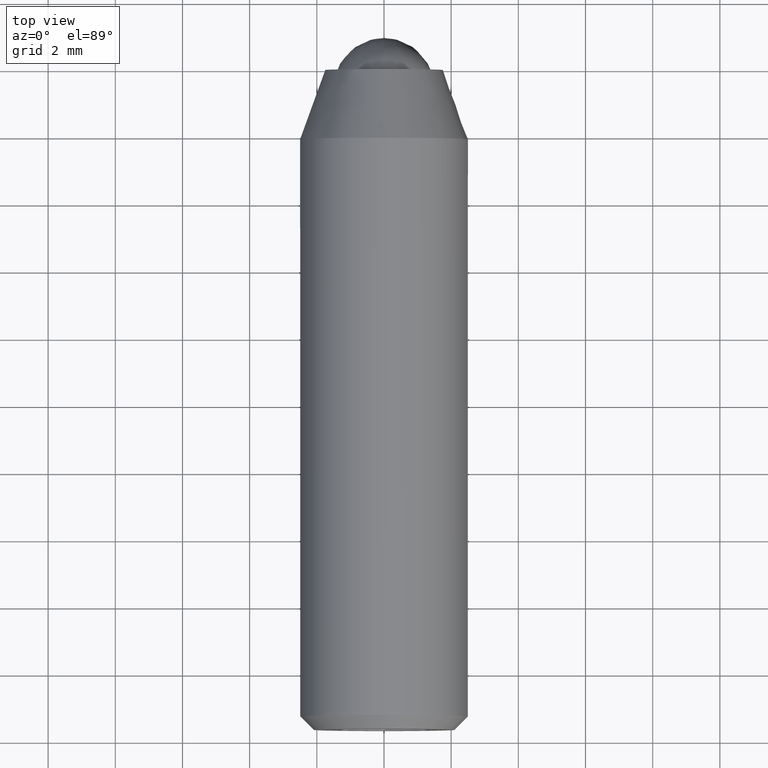
[diagram: clean part render]
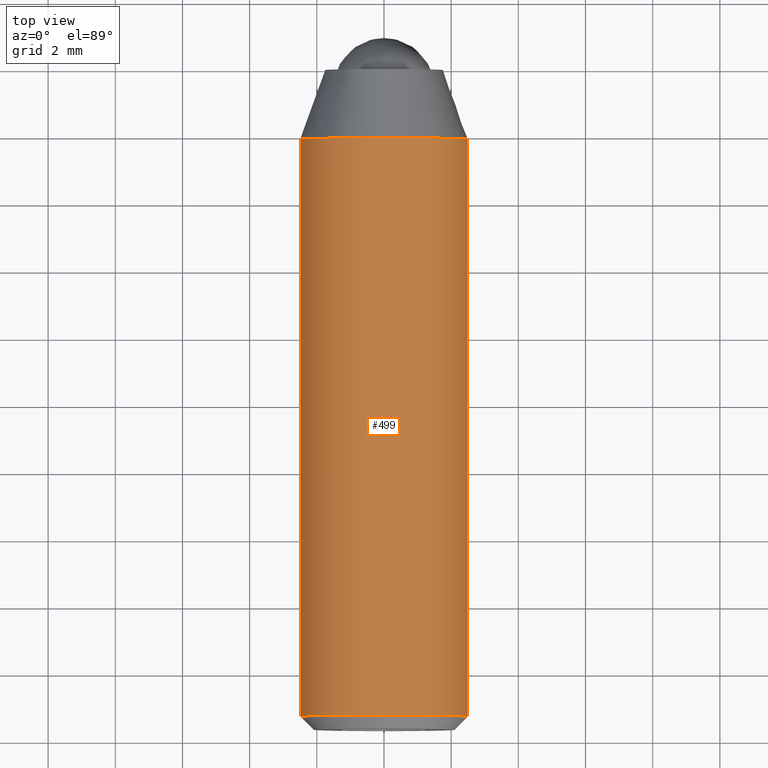
[diagram: same view with one face highlighted and labeled with its STEP entity id]
A machine part, top view. The second image highlights one B-rep face of the part: STEP entity #499.
In plain terms, the highlighted face is a freeform B-spline surface patch.
Its self-contained STEP definition (entity closure, byte-faithful):
#305=CARTESIAN_POINT('',(-2.495336895541660,-2.060607999999479,0.152622992171653));
#306=VERTEX_POINT('',#305);
#312=CARTESIAN_POINT('',(0.0,-2.060608000000000,2.500000000000000));
#313=VERTEX_POINT('',#312);
#314=CARTESIAN_POINT('',(0.0,-2.060608000000000,2.500000000000000));
#315=CARTESIAN_POINT('',(-2.351763615586854,-2.060607999999999,2.500000000000000));
#316=CARTESIAN_POINT('',(-2.495336895541660,-2.060607999999479,0.152622992171653));
#324=(BOUNDED_CURVE()B_SPLINE_CURVE(2,(#314,#315,#316),.UNSPECIFIED.,.F.,.U.)B_SPLINE_CURVE_WITH_KNOTS((3,3),(0.500000000000000,0.739332848609187),.UNSPECIFIED.)CURVE()GEOMETRIC_REPRESENTATION_ITEM()RATIONAL_B_SPLINE_CURVE((1.0,0.719604126412250,0.976071798136641))REPRESENTATION_ITEM(''));
#325=EDGE_CURVE('',#313,#306,#324,.T.);
#327=CARTESIAN_POINT('',(2.483672983585108,-2.060607999999999,0.285251661887261));
#328=VERTEX_POINT('',#327);
#329=CARTESIAN_POINT('',(2.483672983585108,-2.060607999999999,0.285251661887262));
#330=CARTESIAN_POINT('',(2.229307514231581,-2.060608000000000,2.499999999999999));
#331=CARTESIAN_POINT('',(0.0,-2.060608000000000,2.500000000000000));
#339=(BOUNDED_CURVE()B_SPLINE_CURVE(2,(#329,#330,#331),.UNSPECIFIED.,.F.,.U.)B_SPLINE_CURVE_WITH_KNOTS((3,3),(0.269767755881564,0.500000000000000),.UNSPECIFIED.)CURVE()GEOMETRIC_REPRESENTATION_ITEM()RATIONAL_B_SPLINE_CURVE((0.957343736450889,0.730266147782027,1.0))REPRESENTATION_ITEM(''));
#340=EDGE_CURVE('',#328,#313,#339,.T.);
#435=CARTESIAN_POINT('',(2.483672983589284,-1.630873199999999,0.285251661850900));
#436=CARTESIAN_POINT('',(2.244537881465204,-1.630873200000000,2.367389899783016));
#437=CARTESIAN_POINT('',(0.152621348837143,-1.630873199999999,2.495336996054666));
#438=CARTESIAN_POINT('',(-2.342715647217524,-1.630873199999999,2.647958344891809));
#439=CARTESIAN_POINT('',(-2.495336996054667,-1.630873199999999,0.152621348837142));
#440=CARTESIAN_POINT('',(2.483672983589284,-19.690478170000006,0.285251661850900));
#441=CARTESIAN_POINT('',(2.244537881465204,-19.690478169999999,2.367389899783016));
#442=CARTESIAN_POINT('',(0.152621348837143,-19.690478169999999,2.495336996054666));
#443=CARTESIAN_POINT('',(-2.342715647217524,-19.690478169999999,2.647958344891809));
#444=CARTESIAN_POINT('',(-2.495336996054667,-19.690478169999999,0.152621348837142));
#452=(BOUNDED_SURFACE()B_SPLINE_SURFACE(2,1,((#435,#440),(#436,#441),(#437,#442),(#438,#443),(#439,#444)),.UNSPECIFIED.,.F.,.F.,.U.)B_SPLINE_SURFACE_WITH_KNOTS((3,2,3),(2,2),(0.0,3.645079348883235,7.787214972614184),(0.0,18.059604970000009),.UNSPECIFIED.)GEOMETRIC_REPRESENTATION_ITEM()RATIONAL_B_SPLINE_SURFACE(((0.938140952186599,0.938140952186599),(0.742253967444162,0.742253967444162),(1.0,1.0),(0.707106781186548,0.707106781186548),(1.0,1.0)))REPRESENTATION_ITEM('')SURFACE());
#453=CARTESIAN_POINT('',(2.483672983576886,-19.250000000000000,0.285251661958853));
#454=VERTEX_POINT('',#453);
#455=CARTESIAN_POINT('',(0.0,-19.250000000000000,2.500000000000000));
#456=VERTEX_POINT('',#455);
#457=CARTESIAN_POINT('',(2.483672983576886,-19.250000000000004,0.285251661958853));
#458=CARTESIAN_POINT('',(2.229307514102217,-19.249999999999993,2.499999999999999));
#459=CARTESIAN_POINT('',(0.0,-19.250000000000000,2.500000000000000));
#467=(BOUNDED_CURVE()B_SPLINE_CURVE(2,(#457,#458,#459),.UNSPECIFIED.,.F.,.U.)B_SPLINE_CURVE_WITH_KNOTS((3,3),(0.269767755891321,0.500000000000000),.UNSPECIFIED.)CURVE()GEOMETRIC_REPRESENTATION_ITEM()RATIONAL_B_SPLINE_CURVE((0.957343736431644,0.730266147793458,1.0))REPRESENTATION_ITEM(''));
#468=EDGE_CURVE('',#454,#456,#467,.T.);
#469=ORIENTED_EDGE('',*,*,#468,.F.);
#470=CARTESIAN_POINT('',(2.483672983585108,-2.060607999999999,0.285251661887261));
#471=CARTESIAN_POINT('',(2.483672983576886,-19.250000000000000,0.285251661958853));
#472=QUASI_UNIFORM_CURVE('',1,(#470,#471),.UNSPECIFIED.,.F.,.U.);
#473=EDGE_CURVE('',#328,#454,#472,.T.);
#474=ORIENTED_EDGE('',*,*,#473,.F.);
#475=ORIENTED_EDGE('',*,*,#340,.T.);
#476=ORIENTED_EDGE('',*,*,#325,.T.);
#477=CARTESIAN_POINT('',(-2.493815165195101,-19.249999999996600,0.174384544104496));
#478=VERTEX_POINT('',#477);
#479=CARTESIAN_POINT('',(-2.495336895541660,-2.060607999999479,0.152622992171653));
#480=CARTESIAN_POINT('',(-2.493815165195101,-19.249999999996600,0.174384544104496));
#481=QUASI_UNIFORM_CURVE('',1,(#479,#480),.UNSPECIFIED.,.F.,.U.);
#482=EDGE_CURVE('',#306,#478,#481,.T.);
#483=ORIENTED_EDGE('',*,*,#482,.T.);
#484=CARTESIAN_POINT('',(0.0,-19.250000000000000,2.500000000000000));
#485=CARTESIAN_POINT('',(-2.331240235093511,-19.249999999998305,2.499996679859113));
#486=CARTESIAN_POINT('',(-2.493815165195101,-19.249999999996597,0.174384544104496));
#494=(BOUNDED_CURVE()B_SPLINE_CURVE(2,(#484,#485,#486),.UNSPECIFIED.,.F.,.U.)B_SPLINE_CURVE_WITH_KNOTS((3,3),(0.500000000000000,0.737829682995177),.UNSPECIFIED.)CURVE()GEOMETRIC_REPRESENTATION_ITEM()RATIONAL_B_SPLINE_CURVE((1.0,0.721365194472639,0.972871408705238))REPRESENTATION_ITEM(''));
#495=EDGE_CURVE('',#456,#478,#494,.T.);
#496=ORIENTED_EDGE('',*,*,#495,.F.);
#497=EDGE_LOOP('',(#469,#474,#475,#476,#483,#496));
#498=FACE_OUTER_BOUND('',#497,.T.);
#499=ADVANCED_FACE('',(#498),#452,.T.);